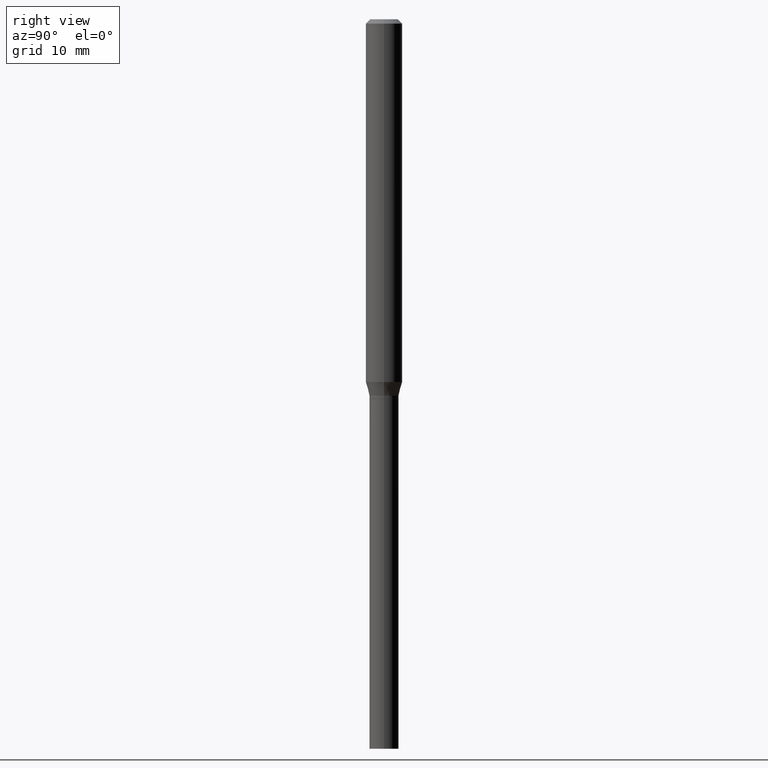
[diagram: clean part render]
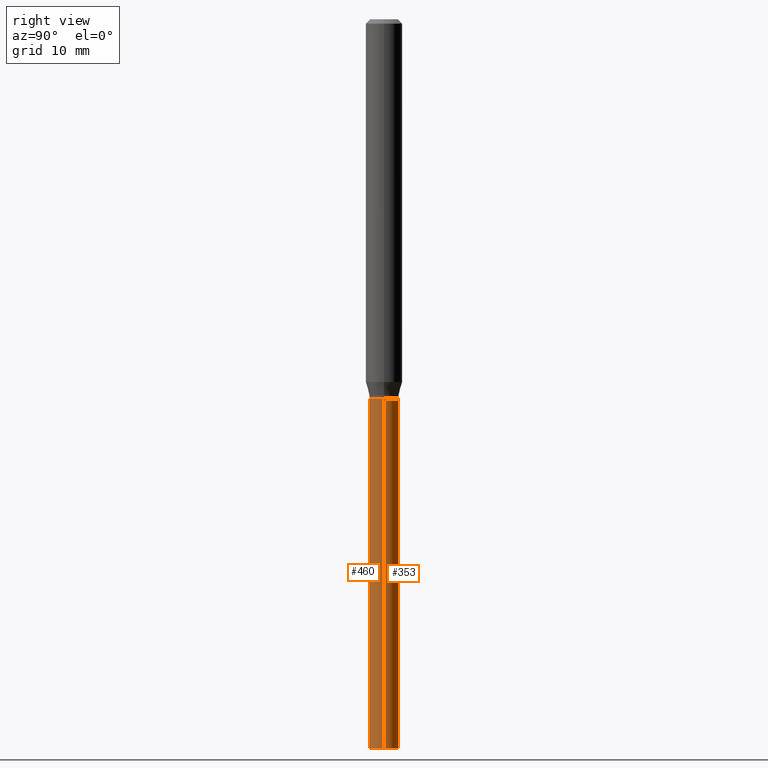
[diagram: same view with one multi-face feature highlighted, each face labeled with its STEP entity id]
A machine part, right view. The highlighted faces form ONE feature: a constant-radius fillet chain: 2 tangent blend faces with common blend radius 1.27 mm. The faces share edges in the B-rep.
Their STEP definitions:
[1] entity #460 (Cylinder):
#3 = AXIS2_PLACEMENT_3D ( 'NONE', #299, #335, #261 ) ;
#6 = EDGE_CURVE ( 'NONE', #208, #189, #412, .T. ) ;
#20 = CARTESIAN_POINT ( 'NONE',  ( 0.05000000000000000278, -9.077851480992178278E-15, -2.500000000000000000 ) ) ;
#46 = DIRECTION ( 'NONE',  ( -2.445468806185136597E-29, 3.491481338843145583E-15, 1.000000000000000000 ) ) ;
#62 = CARTESIAN_POINT ( 'NONE',  ( -0.05000000000000000278, -6.278543175921927421E-15, -1.300000000000000266 ) ) ;
#70 = AXIS2_PLACEMENT_3D ( 'NONE', #466, #250, #114 ) ;
#76 = FACE_OUTER_BOUND ( 'NONE', #288, .T. ) ;
#107 = DIRECTION ( 'NONE',  ( -2.445468806185136877E-29, 3.491481338843145188E-15, 1.000000000000000000 ) ) ;
#114 = DIRECTION ( 'NONE',  ( 1.000000000000000000, -6.982962677686274599E-15, 0.000000000000000000 ) ) ;
#139 = ORIENTED_EDGE ( 'NONE', *, *, #309, .T. ) ;
#149 = ORIENTED_EDGE ( 'NONE', *, *, #428, .F. ) ;
#169 = CARTESIAN_POINT ( 'NONE',  ( 0.05000000000000000278, -3.491481338843133848E-16, 2.438088387897968247E-30 ) ) ;
#171 = CARTESIAN_POINT ( 'NONE',  ( -0.05000000000000000278, 3.552713678800501127E-16, -2.459467545127453311E-30 ) ) ;
#189 = VERTEX_POINT ( 'NONE', #20 ) ;
#194 = VECTOR ( 'NONE', #107, 39.37007874015748143 ) ;
#208 = VERTEX_POINT ( 'NONE', #272 ) ;
#220 = DIRECTION ( 'NONE',  ( 1.000000000000000000, -6.982962677686267499E-15, 4.876176775795936353E-29 ) ) ;
#250 = DIRECTION ( 'NONE',  ( -2.445468806185136597E-29, 3.491481338843145583E-15, 1.000000000000000000 ) ) ;
#253 = EDGE_CURVE ( 'NONE', #208, #349, #317, .T. ) ;
#261 = DIRECTION ( 'NONE',  ( 1.000000000000000000, -6.982962677686274599E-15, 0.000000000000000000 ) ) ;
#271 = CIRCLE ( 'NONE', #70, 0.05000000000000000278 ) ;
#272 = CARTESIAN_POINT ( 'NONE',  ( -0.05000000000000000278, -6.278543175921927421E-15, -2.500000000000000000 ) ) ;
#288 = EDGE_LOOP ( 'NONE', ( #421, #384, #139, #149 ) ) ;
#292 = CARTESIAN_POINT ( 'NONE',  ( 0.000000000000000000, 0.000000000000000000, 0.000000000000000000 ) ) ;
#299 = CARTESIAN_POINT ( 'NONE',  ( 6.113672015462842613E-29, -8.728703347107864943E-15, -2.500000000000000000 ) ) ;
#309 = EDGE_CURVE ( 'NONE', #189, #402, #462, .T. ) ;
#312 = VECTOR ( 'NONE', #388, 39.37007874015748143 ) ;
#317 = LINE ( 'NONE', #171, #312 ) ;
#325 = CARTESIAN_POINT ( 'NONE',  ( 0.05000000000000000278, -4.888073874380404052E-15, -1.300000000000000266 ) ) ;
#330 = AXIS2_PLACEMENT_3D ( 'NONE', #292, #46, #220 ) ;
#335 = DIRECTION ( 'NONE',  ( -2.445468806185136597E-29, 3.491481338843145583E-15, 1.000000000000000000 ) ) ;
#349 = VERTEX_POINT ( 'NONE', #62 ) ;
#368 = CYLINDRICAL_SURFACE ( 'NONE', #330, 0.05000000000000000278 ) ;
#384 = ORIENTED_EDGE ( 'NONE', *, *, #6, .T. ) ;
#388 = DIRECTION ( 'NONE',  ( -2.445468806185136877E-29, 3.491481338843145188E-15, 1.000000000000000000 ) ) ;
#402 = VERTEX_POINT ( 'NONE', #325 ) ;
#412 = CIRCLE ( 'NONE', #3, 0.05000000000000000278 ) ;
#421 = ORIENTED_EDGE ( 'NONE', *, *, #253, .F. ) ;
#428 = EDGE_CURVE ( 'NONE', #349, #402, #271, .T. ) ;
#460 = ADVANCED_FACE ( 'NONE', ( #76 ), #368, .T. ) ;
#462 = LINE ( 'NONE', #169, #194 ) ;
#466 = CARTESIAN_POINT ( 'NONE',  ( 3.179109448040678473E-29, -4.538925740496089928E-15, -1.300000000000000266 ) ) ;
[2] entity #353 (Cylinder):
#20 = CARTESIAN_POINT ( 'NONE',  ( 0.05000000000000000278, -9.077851480992178278E-15, -2.500000000000000000 ) ) ;
#32 = ORIENTED_EDGE ( 'NONE', *, *, #345, .T. ) ;
#48 = CIRCLE ( 'NONE', #385, 0.05000000000000000278 ) ;
#57 = DIRECTION ( 'NONE',  ( -2.445468806185136597E-29, 3.491481338843145583E-15, 1.000000000000000000 ) ) ;
#58 = DIRECTION ( 'NONE',  ( 1.000000000000000000, -6.982962677686267499E-15, 4.876176775795936353E-29 ) ) ;
#62 = CARTESIAN_POINT ( 'NONE',  ( -0.05000000000000000278, -6.278543175921927421E-15, -1.300000000000000266 ) ) ;
#83 = ORIENTED_EDGE ( 'NONE', *, *, #253, .T. ) ;
#89 = CARTESIAN_POINT ( 'NONE',  ( 3.179109448040678473E-29, -4.538925740496089928E-15, -1.300000000000000266 ) ) ;
#107 = DIRECTION ( 'NONE',  ( -2.445468806185136877E-29, 3.491481338843145188E-15, 1.000000000000000000 ) ) ;
#138 = DIRECTION ( 'NONE',  ( -2.445468806185136597E-29, 3.491481338843145583E-15, 1.000000000000000000 ) ) ;
#152 = CIRCLE ( 'NONE', #360, 0.05000000000000000278 ) ;
#169 = CARTESIAN_POINT ( 'NONE',  ( 0.05000000000000000278, -3.491481338843133848E-16, 2.438088387897968247E-30 ) ) ;
#171 = CARTESIAN_POINT ( 'NONE',  ( -0.05000000000000000278, 3.552713678800501127E-16, -2.459467545127453311E-30 ) ) ;
#173 = EDGE_LOOP ( 'NONE', ( #32, #83, #277, #210 ) ) ;
#177 = DIRECTION ( 'NONE',  ( -2.445468806185136597E-29, 3.491481338843145583E-15, 1.000000000000000000 ) ) ;
#189 = VERTEX_POINT ( 'NONE', #20 ) ;
#194 = VECTOR ( 'NONE', #107, 39.37007874015748143 ) ;
#208 = VERTEX_POINT ( 'NONE', #272 ) ;
#210 = ORIENTED_EDGE ( 'NONE', *, *, #309, .F. ) ;
#218 = EDGE_CURVE ( 'NONE', #402, #349, #48, .T. ) ;
#253 = EDGE_CURVE ( 'NONE', #208, #349, #317, .T. ) ;
#272 = CARTESIAN_POINT ( 'NONE',  ( -0.05000000000000000278, -6.278543175921927421E-15, -2.500000000000000000 ) ) ;
#273 = CARTESIAN_POINT ( 'NONE',  ( 0.000000000000000000, 0.000000000000000000, 0.000000000000000000 ) ) ;
#277 = ORIENTED_EDGE ( 'NONE', *, *, #218, .F. ) ;
#287 = CARTESIAN_POINT ( 'NONE',  ( 6.113672015462842613E-29, -8.728703347107864943E-15, -2.500000000000000000 ) ) ;
#309 = EDGE_CURVE ( 'NONE', #189, #402, #462, .T. ) ;
#312 = VECTOR ( 'NONE', #388, 39.37007874015748143 ) ;
#317 = LINE ( 'NONE', #171, #312 ) ;
#325 = CARTESIAN_POINT ( 'NONE',  ( 0.05000000000000000278, -4.888073874380404052E-15, -1.300000000000000266 ) ) ;
#345 = EDGE_CURVE ( 'NONE', #189, #208, #152, .T. ) ;
#349 = VERTEX_POINT ( 'NONE', #62 ) ;
#353 = ADVANCED_FACE ( 'NONE', ( #383 ), #356, .T. ) ;
#356 = CYLINDRICAL_SURFACE ( 'NONE', #397, 0.05000000000000000278 ) ;
#360 = AXIS2_PLACEMENT_3D ( 'NONE', #287, #177, #391 ) ;
#383 = FACE_OUTER_BOUND ( 'NONE', #173, .T. ) ;
#385 = AXIS2_PLACEMENT_3D ( 'NONE', #89, #57, #449 ) ;
#388 = DIRECTION ( 'NONE',  ( -2.445468806185136877E-29, 3.491481338843145188E-15, 1.000000000000000000 ) ) ;
#391 = DIRECTION ( 'NONE',  ( 1.000000000000000000, -6.982962677686274599E-15, 0.000000000000000000 ) ) ;
#397 = AXIS2_PLACEMENT_3D ( 'NONE', #273, #138, #58 ) ;
#402 = VERTEX_POINT ( 'NONE', #325 ) ;
#449 = DIRECTION ( 'NONE',  ( 1.000000000000000000, -6.982962677686274599E-15, 0.000000000000000000 ) ) ;
#462 = LINE ( 'NONE', #169, #194 ) ;